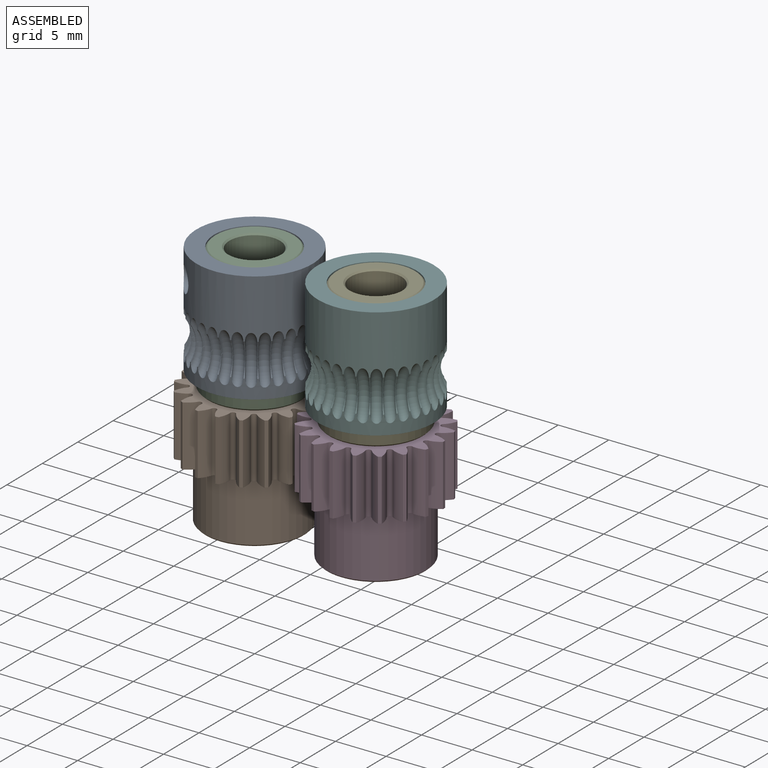
[diagram: assembled view]
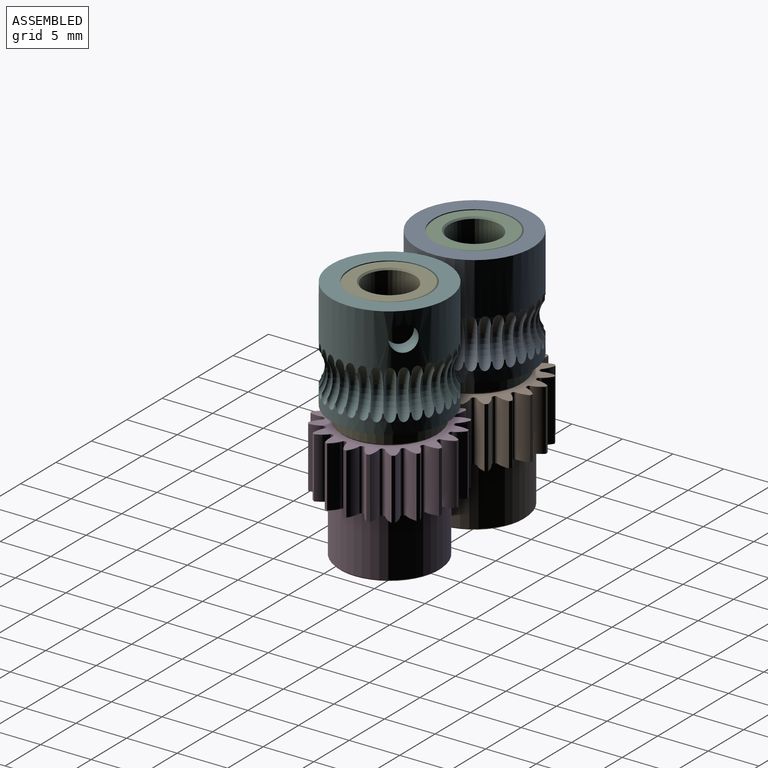
[diagram: assembled view, second angle]
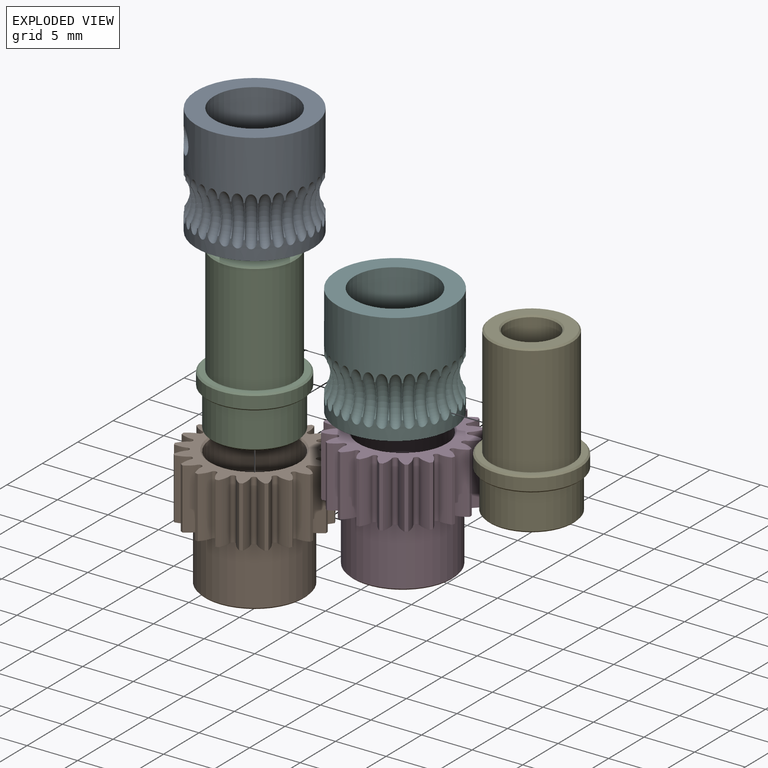
[diagram: exploded view]
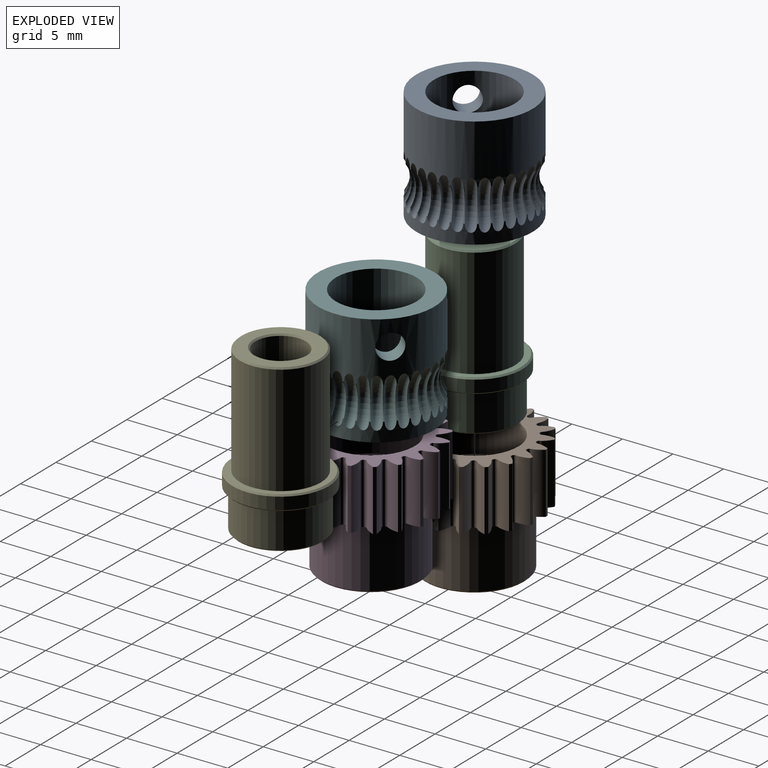
[diagram: exploded view, second angle]
ASSEMBLY  parts=6 mates=4
PART A: 70 faces, bbox 12.2x11x12.2 mm
  f0: cylinder r=5.75mm len=11.5mm, axis (0,1,0), area 186.2mm2, adj f2,f3,f4,f5,f6,f7,f8,f9
  f1: cylinder r=4mm len=11mm, axis (0,1,0), area 271.5mm2, adj f66,f67,f69
  f2: torus R=8.25mm, axis (0,1,0), area 0.4mm2, adj f0,f3,f65,f68
  f3: torus R=3mm, axis (-0.2,0,0.98), area 7.3mm2, adj f0,f2,f4,f65
  f4: torus R=8.25mm, axis (0,1,0), area 0.4mm2, adj f0,f3,f5,f65
  f5: torus R=3mm, axis (-0.38,0,0.92), area 7.3mm2, adj f0,f4,f6,f65
  f6: torus R=8.25mm, axis (0,1,0), area 0.4mm2, adj f0,f5,f7,f65
  f7: torus R=3mm, axis (-0.56,0,0.83), area 7.3mm2, adj f0,f6,f8,f65
  f8: torus R=8.25mm, axis (0,1,0), area 0.4mm2, adj f0,f7,f9,f65
  f9: torus R=3mm, axis (-0.71,0,0.71), area 7.3mm2, adj f0,f8,f10,f65
  f10: torus R=8.25mm, axis (0,1,0), area 0.4mm2, adj f0,f9,f11,f65
  f11: torus R=3mm, axis (-0.83,0,0.56), area 7.3mm2, adj f0,f10,f12,f65
  f12: torus R=8.25mm, axis (0,1,0), area 0.4mm2, adj f0,f11,f13,f65
  f13: torus R=3mm, axis (-0.92,0,0.38), area 7.3mm2, adj f0,f12,f14,f65
  f14: torus R=8.25mm, axis (0,1,0), area 0.4mm2, adj f0,f13,f15,f65
  f15: torus R=3mm, axis (-0.98,0,0.2), area 7.3mm2, adj f0,f14,f16,f65
  f16: torus R=8.25mm, axis (0,1,0), area 0.4mm2, adj f0,f15,f17,f65
  f17: torus R=3mm, axis (-1,0,0), area 7.3mm2, adj f0,f16,f18,f65
  f18: torus R=8.25mm, axis (0,1,0), area 0.4mm2, adj f0,f17,f19,f65
  f19: torus R=3mm, axis (-0.98,0,-0.2), area 7.3mm2, adj f0,f18,f20,f65
  f20: torus R=8.25mm, axis (0,1,0), area 0.4mm2, adj f0,f19,f21,f65
  f21: torus R=3mm, axis (-0.92,0,-0.38), area 7.3mm2, adj f0,f20,f22,f65
  f22: torus R=8.25mm, axis (0,1,0), area 0.4mm2, adj f0,f21,f23,f65
  f23: torus R=3mm, axis (-0.83,0,-0.56), area 7.3mm2, adj f0,f22,f24,f65
  f24: torus R=8.25mm, axis (0,1,0), area 0.4mm2, adj f0,f23,f25,f65
  f25: torus R=3mm, axis (-0.71,0,-0.71), area 7.3mm2, adj f0,f24,f26,f65
  f26: torus R=8.25mm, axis (0,1,0), area 0.4mm2, adj f0,f25,f27,f65
  f27: torus R=3mm, axis (-0.56,0,-0.83), area 7.3mm2, adj f0,f26,f28,f65
  f28: torus R=8.25mm, axis (0,1,0), area 0.4mm2, adj f0,f27,f29,f65
  f29: torus R=3mm, axis (-0.38,0,-0.92), area 7.3mm2, adj f0,f28,f30,f65
  f30: torus R=8.25mm, axis (0,1,0), area 0.4mm2, adj f0,f29,f31,f65
  f31: torus R=3mm, axis (-0.2,0,-0.98), area 7.3mm2, adj f0,f30,f32,f65
  f32: torus R=8.25mm, axis (0,1,0), area 0.4mm2, adj f0,f31,f33,f65
  f33: torus R=3mm, axis (0,0,-1), area 7.3mm2, adj f0,f32,f34,f65
  f34: torus R=8.25mm, axis (0,1,0), area 0.4mm2, adj f0,f33,f35,f65
  f35: torus R=3mm, axis (0.2,0,-0.98), area 7.3mm2, adj f0,f34,f36,f65
  f36: torus R=8.25mm, axis (0,1,0), area 0.4mm2, adj f0,f35,f37,f65
  f37: torus R=3mm, axis (0.38,0,-0.92), area 7.3mm2, adj f0,f36,f38,f65
  f38: torus R=8.25mm, axis (0,1,0), area 0.4mm2, adj f0,f37,f39,f65
  f39: torus R=3mm, axis (0.56,0,-0.83), area 7.3mm2, adj f0,f38,f40,f65
  f40: torus R=8.25mm, axis (0,1,0), area 0.4mm2, adj f0,f39,f41,f65
  f41: torus R=3mm, axis (0.71,0,-0.71), area 7.3mm2, adj f0,f40,f42,f65
  f42: torus R=8.25mm, axis (0,1,0), area 0.4mm2, adj f0,f41,f43,f65
  f43: torus R=3mm, axis (0.83,0,-0.56), area 7.3mm2, adj f0,f42,f44,f65
  f44: torus R=8.25mm, axis (0,1,0), area 0.4mm2, adj f0,f43,f45,f65
  f45: torus R=3mm, axis (0.92,0,-0.38), area 7.3mm2, adj f0,f44,f46,f65
  f46: torus R=8.25mm, axis (0,1,0), area 0.4mm2, adj f0,f45,f47,f65
  f47: torus R=3mm, axis (0.98,0,-0.2), area 7.3mm2, adj f0,f46,f48,f65
  f48: torus R=8.25mm, axis (0,1,0), area 0.4mm2, adj f0,f47,f49,f65
  f49: torus R=3mm, axis (1,0,0), area 7.3mm2, adj f0,f48,f50,f65
  f50: torus R=8.25mm, axis (0,1,0), area 0.4mm2, adj f0,f49,f51,f65
  f51: torus R=3mm, axis (0.98,0,0.2), area 7.3mm2, adj f0,f50,f52,f65
  f52: torus R=8.25mm, axis (0,1,0), area 0.4mm2, adj f0,f51,f53,f65
  f53: torus R=3mm, axis (0.92,0,0.38), area 7.3mm2, adj f0,f52,f54,f65
  f54: torus R=8.25mm, axis (0,1,0), area 0.4mm2, adj f0,f53,f55,f65
  f55: torus R=3mm, axis (0.83,0,0.56), area 7.3mm2, adj f0,f54,f56,f65
  f56: torus R=8.25mm, axis (0,1,0), area 0.4mm2, adj f0,f55,f57,f65
  f57: torus R=3mm, axis (0.71,0,0.71), area 7.3mm2, adj f0,f56,f58,f65
  f58: torus R=8.25mm, axis (0,1,0), area 0.4mm2, adj f0,f57,f59,f65
  f59: torus R=3mm, axis (0.56,0,0.83), area 7.3mm2, adj f0,f58,f60,f65
  f60: torus R=8.25mm, axis (0,1,0), area 0.4mm2, adj f0,f59,f61,f65
  f61: torus R=3mm, axis (0.38,0,0.92), area 7.3mm2, adj f0,f60,f62,f65
  f62: torus R=8.25mm, axis (0,1,0), area 0.4mm2, adj f0,f61,f63,f65
  f63: torus R=3mm, axis (0.2,0,0.98), area 7.3mm2, adj f0,f62,f64,f65
  f64: torus R=8.25mm, axis (0,1,0), area 0.4mm2, adj f0,f63,f65,f68
  f65: cylinder r=5.75mm len=11.5mm, axis (0,1,0), area 46.5mm2, adj f2,f3,f4,f5,f6,f7,f8,f9
  f66: plane 11.5x11.5mm, normal (0,1,0), area 53.6mm2, adj f0,f1
  f67: plane 11.5x11.5mm, normal (0,-1,0), area 53.6mm2, adj f1,f65
  f68: torus R=3mm, axis (0,0,1), area 7.3mm2, adj f0,f2,f64,f65
  f69: cylinder r=1.25mm len=2.5mm, axis (0,0,1), area 14mm2, adj f0,f1
PART B: 92 faces, bbox 13.2x12x13.2 mm
  f0: cylinder r=2.5mm len=7.7mm, axis (0,1,0), area 121mm2, adj f88,f91
  f1: cylinder r=6.6mm len=6mm, axis (0,1,0), area 1.8mm2, adj f20,f21,f54,f80
  f2: cylinder r=6.6mm len=6mm, axis (0,1,0), area 1.8mm2, adj f20,f21,f77,f81
  f3: cylinder r=6.6mm len=6mm, axis (0,1,0), area 1.8mm2, adj f20,f21,f74,f78
  f4: cylinder r=6.6mm len=6mm, axis (0,1,0), area 1.8mm2, adj f20,f21,f71,f75
  f5: cylinder r=6.6mm len=6mm, axis (0,1,0), area 1.8mm2, adj f20,f21,f68,f72
  f6: cylinder r=6.6mm len=6mm, axis (0,1,0), area 1.8mm2, adj f20,f21,f65,f69
  f7: cylinder r=6.6mm len=6mm, axis (0,1,0), area 1.8mm2, adj f20,f21,f62,f66
  f8: cylinder r=6.6mm len=6mm, axis (0,1,0), area 1.8mm2, adj f20,f21,f59,f63
  f9: cylinder r=6.6mm len=6mm, axis (0,1,0), area 1.8mm2, adj f20,f21,f51,f56
  f10: cylinder r=6.6mm len=6mm, axis (0,1,0), area 1.8mm2, adj f20,f21,f53,f57
  f11: cylinder r=6.6mm len=6mm, axis (0,1,0), area 1.8mm2, adj f20,f21,f48,f50
  f12: cylinder r=6.6mm len=6mm, axis (0,1,0), area 1.8mm2, adj f20,f21,f36,f47
  f13: cylinder r=6.6mm len=6mm, axis (0,1,0), area 1.8mm2, adj f20,f21,f24,f44
  f14: cylinder r=6.6mm len=6mm, axis (0,1,0), area 1.8mm2, adj f20,f21,f41,f45
  f15: cylinder r=6.6mm len=6mm, axis (0,1,0), area 1.8mm2, adj f20,f21,f38,f42
  f16: cylinder r=6.6mm len=6mm, axis (0,1,0), area 1.8mm2, adj f20,f21,f35,f39
  f17: cylinder r=6.6mm len=6mm, axis (0,1,0), area 1.8mm2, adj f20,f21,f30,f32
  f18: cylinder r=6.6mm len=6mm, axis (0,1,0), area 1.8mm2, adj f20,f21,f29,f60
  f19: cylinder r=6.6mm len=6mm, axis (0,1,0), area 1.8mm2, adj f20,f21,f26,f33
  f20: plane 13.2x13.2mm, normal (0,-1,0), area 33.1mm2, adj f1,f2,f3,f4,f5,f6,f7,f8
  f21: plane 13.2x13.2mm, normal (0,1,0), area 50.9mm2, adj f1,f2,f3,f4,f5,f6,f7,f8
  f22: cylinder r=6.6mm len=6mm, axis (0,1,0), area 1.8mm2, adj f20,f21,f23,f27
  f23: extruded ~6x1.15mm, area 7.4mm2, adj f20,f21,f22,f25
  f24: extruded ~6x0.96mm, area 7.4mm2, adj f13,f20,f21,f25
  f25: cylinder r=0.27mm len=6mm, axis (0,1,0), area 4.6mm2, adj f20,f21,f23,f24
  f26: extruded ~6x0.96mm, area 7.4mm2, adj f19,f20,f21,f28
  f27: extruded ~6x1.15mm, area 7.4mm2, adj f20,f21,f22,f28
  f28: cylinder r=0.27mm len=6mm, axis (0,1,0), area 4.6mm2, adj f20,f21,f26,f27
  f29: extruded ~6x1.19mm, area 7.4mm2, adj f18,f20,f21,f31
  f30: extruded ~6x1.19mm, area 7.4mm2, adj f17,f20,f21,f31
  f31: cylinder r=0.27mm len=6mm, axis (0,1,0), area 4.6mm2, adj f20,f21,f29,f30
  f32: extruded ~6x1.03mm, area 7.4mm2, adj f17,f20,f21,f34
  f33: extruded ~6x1.23mm, area 7.4mm2, adj f19,f20,f21,f34
  f34: cylinder r=0.27mm len=6mm, axis (0,1,0), area 4.6mm2, adj f20,f21,f32,f33
  f35: extruded ~6x0.96mm, area 7.4mm2, adj f16,f20,f21,f37
  f36: extruded ~6x1.15mm, area 7.4mm2, adj f12,f20,f21,f37
  f37: cylinder r=0.27mm len=6mm, axis (0,1,0), area 4.6mm2, adj f20,f21,f35,f36
  f38: extruded ~6x1.03mm, area 7.4mm2, adj f15,f20,f21,f40
  f39: extruded ~6x1.23mm, area 7.4mm2, adj f16,f20,f21,f40
  f40: cylinder r=0.27mm len=6mm, axis (0,1,0), area 4.6mm2, adj f20,f21,f38,f39
  f41: extruded ~6x1.19mm, area 7.4mm2, adj f14,f20,f21,f43
  f42: extruded ~6x1.19mm, area 7.4mm2, adj f15,f20,f21,f43
  f43: cylinder r=0.27mm len=6mm, axis (0,1,0), area 4.6mm2, adj f20,f21,f41,f42
  f44: extruded ~6x1.23mm, area 7.4mm2, adj f13,f20,f21,f46
  f45: extruded ~6x1.03mm, area 7.4mm2, adj f14,f20,f21,f46
  f46: cylinder r=0.27mm len=6mm, axis (0,1,0), area 4.6mm2, adj f20,f21,f44,f45
  f47: extruded ~6x1.15mm, area 7.4mm2, adj f12,f20,f21,f49
  f48: extruded ~6x0.96mm, area 7.4mm2, adj f11,f20,f21,f49
  f49: cylinder r=0.27mm len=6mm, axis (0,1,0), area 4.6mm2, adj f20,f21,f47,f48
  f50: extruded ~6x1.23mm, area 7.4mm2, adj f11,f20,f21,f52
  f51: extruded ~6x1.03mm, area 7.4mm2, adj f9,f20,f21,f52
  f52: cylinder r=0.27mm len=6mm, axis (0,1,0), area 4.6mm2, adj f20,f21,f50,f51
  f53: extruded ~6x1.03mm, area 7.4mm2, adj f10,f20,f21,f55
  f54: extruded ~6x1.23mm, area 7.4mm2, adj f1,f20,f21,f55
  f55: cylinder r=0.27mm len=6mm, axis (0,1,0), area 4.6mm2, adj f20,f21,f53,f54
  f56: extruded ~6x1.19mm, area 7.4mm2, adj f9,f20,f21,f58
  f57: extruded ~6x1.19mm, area 7.4mm2, adj f10,f20,f21,f58
  f58: cylinder r=0.27mm len=6mm, axis (0,1,0), area 4.6mm2, adj f20,f21,f56,f57
  f59: extruded ~6x1.23mm, area 7.4mm2, adj f8,f20,f21,f61
  f60: extruded ~6x1.03mm, area 7.4mm2, adj f18,f20,f21,f61
  f61: cylinder r=0.27mm len=6mm, axis (0,1,0), area 4.6mm2, adj f20,f21,f59,f60
  f62: extruded ~6x1.15mm, area 7.4mm2, adj f7,f20,f21,f64
  f63: extruded ~6x0.96mm, area 7.4mm2, adj f8,f20,f21,f64
  f64: cylinder r=0.27mm len=6mm, axis (0,1,0), area 4.6mm2, adj f20,f21,f62,f63
  f65: extruded ~6x0.96mm, area 7.4mm2, adj f6,f20,f21,f67
  f66: extruded ~6x1.15mm, area 7.4mm2, adj f7,f20,f21,f67
  f67: cylinder r=0.27mm len=6mm, axis (0,1,0), area 4.6mm2, adj f20,f21,f65,f66
  f68: extruded ~6x1.03mm, area 7.4mm2, adj f5,f20,f21,f70
  f69: extruded ~6x1.23mm, area 7.4mm2, adj f6,f20,f21,f70
  f70: cylinder r=0.27mm len=6mm, axis (0,1,0), area 4.6mm2, adj f20,f21,f68,f69
  f71: extruded ~6x1.19mm, area 7.4mm2, adj f4,f20,f21,f73
  f72: extruded ~6x1.19mm, area 7.4mm2, adj f5,f20,f21,f73
  f73: cylinder r=0.27mm len=6mm, axis (0,1,0), area 4.6mm2, adj f20,f21,f71,f72
  f74: extruded ~6x1.23mm, area 7.4mm2, adj f3,f20,f21,f76
  f75: extruded ~6x1.03mm, area 7.4mm2, adj f4,f20,f21,f76
  f76: cylinder r=0.27mm len=6mm, axis (0,1,0), area 4.6mm2, adj f20,f21,f74,f75
  f77: extruded ~6x1.15mm, area 7.4mm2, adj f2,f20,f21,f79
  f78: extruded ~6x0.96mm, area 7.4mm2, adj f3,f20,f21,f79
  f79: cylinder r=0.27mm len=6mm, axis (0,1,0), area 4.6mm2, adj f20,f21,f77,f78
  f80: extruded ~6x0.96mm, area 7.4mm2, adj f1,f20,f21,f82
  f81: extruded ~6x1.15mm, area 7.4mm2, adj f2,f20,f21,f82
  f82: cylinder r=0.27mm len=6mm, axis (0,1,0), area 4.6mm2, adj f20,f21,f80,f81
  f83: cylinder r=5mm len=10mm, axis (0,1,0), area 183.8mm2, adj f20,f87
  f84: plane 9.7x9.7mm, normal (0,-1,0), area 51.8mm2, adj f87,f88
  f85: cylinder r=4.25mm len=8.5mm, axis (0,1,0), area 98.8mm2, adj f89,f90
  f86: plane 8.2x8.2mm, normal (0,1,0), area 30.7mm2, adj f89,f91
  f87: cone r=4.85mm half-angle=45deg, axis (0,1,0), area 6.6mm2, adj f83,f84
  f88: cone r=2.5mm half-angle=45deg, axis (0,-1,0), area 3.4mm2, adj f0,f84
  f89: cone r=4.1mm half-angle=45deg, axis (0,1,0), area 5.6mm2, adj f85,f86
  f90: cone r=4.25mm half-angle=45deg, axis (0,1,0), area 5.8mm2, adj f21,f85
  f91: cone r=2.65mm half-angle=45deg, axis (0,1,0), area 3.4mm2, adj f0,f86
PART C: 14 faces, bbox 9.5x16.3x9.5 mm
  f0: cylinder r=4.75mm len=9.5mm, axis (0,-1,0), area 35.8mm2, adj f10,f11
  f1: plane 9.2x9.2mm, normal (0,1,0), area 16.2mm2, adj f6,f10
  f2: plane 9.2x9.2mm, normal (0,-1,0), area 9.7mm2, adj f3,f11
  f3: cylinder r=4.25mm len=8.5mm, axis (0,1,0), area 97.5mm2, adj f2,f13
  f4: plane 8.2x8.2mm, normal (0,-1,0), area 30.7mm2, adj f12,f13
  f5: cylinder r=2.5mm len=16mm, axis (0,1,0), area 251.3mm2, adj f8,f12
  f6: cylinder r=4mm len=10.85mm, axis (0,-1,0), area 272.7mm2, adj f1,f9
  f7: plane 7.7x7.7mm, normal (0,1,0), area 24.5mm2, adj f8,f9
  f8: cone r=2.5mm half-angle=45deg, axis (0,1,0), area 3.4mm2, adj f5,f7
  f9: cone r=3.85mm half-angle=45deg, axis (0,-1,0), area 5.2mm2, adj f6,f7
  f10: cone r=4.6mm half-angle=45deg, axis (0,-1,0), area 6.2mm2, adj f0,f1
  f11: cone r=4.75mm half-angle=45deg, axis (0,1,0), area 6.2mm2, adj f0,f2
  f12: cone r=2.5mm half-angle=45deg, axis (0,-1,0), area 3.4mm2, adj f4,f5
  f13: cone r=4.1mm half-angle=45deg, axis (0,1,0), area 5.6mm2, adj f3,f4
PART D: 92 faces, bbox 13.1x12x13.1 mm
  f0: cylinder r=2.5mm len=7.7mm, axis (0,1,0), area 121mm2, adj f88,f91
  f1: cylinder r=6.6mm len=6mm, axis (0,1,0), area 1.8mm2, adj f20,f21,f54,f80
  f2: cylinder r=6.6mm len=6mm, axis (0,1,0), area 1.8mm2, adj f20,f21,f77,f81
  f3: cylinder r=6.6mm len=6mm, axis (0,1,0), area 1.8mm2, adj f20,f21,f74,f78
  f4: cylinder r=6.6mm len=6mm, axis (0,1,0), area 1.8mm2, adj f20,f21,f71,f75
  f5: cylinder r=6.6mm len=6mm, axis (0,1,0), area 1.8mm2, adj f20,f21,f68,f72
  f6: cylinder r=6.6mm len=6mm, axis (0,1,0), area 1.8mm2, adj f20,f21,f65,f69
  f7: cylinder r=6.6mm len=6mm, axis (0,1,0), area 1.8mm2, adj f20,f21,f62,f66
  f8: cylinder r=6.6mm len=6mm, axis (0,1,0), area 1.8mm2, adj f20,f21,f59,f63
  f9: cylinder r=6.6mm len=6mm, axis (0,1,0), area 1.8mm2, adj f20,f21,f51,f56
  f10: cylinder r=6.6mm len=6mm, axis (0,1,0), area 1.8mm2, adj f20,f21,f53,f57
  f11: cylinder r=6.6mm len=6mm, axis (0,1,0), area 1.8mm2, adj f20,f21,f48,f50
  f12: cylinder r=6.6mm len=6mm, axis (0,1,0), area 1.8mm2, adj f20,f21,f36,f47
  f13: cylinder r=6.6mm len=6mm, axis (0,1,0), area 1.8mm2, adj f20,f21,f24,f44
  f14: cylinder r=6.6mm len=6mm, axis (0,1,0), area 1.8mm2, adj f20,f21,f41,f45
  f15: cylinder r=6.6mm len=6mm, axis (0,1,0), area 1.8mm2, adj f20,f21,f38,f42
  f16: cylinder r=6.6mm len=6mm, axis (0,1,0), area 1.8mm2, adj f20,f21,f35,f39
  f17: cylinder r=6.6mm len=6mm, axis (0,1,0), area 1.8mm2, adj f20,f21,f30,f32
  f18: cylinder r=6.6mm len=6mm, axis (0,1,0), area 1.8mm2, adj f20,f21,f29,f60
  f19: cylinder r=6.6mm len=6mm, axis (0,1,0), area 1.8mm2, adj f20,f21,f26,f33
  f20: plane 13.08x13.08mm, normal (0,-1,0), area 33.1mm2, adj f1,f2,f3,f4,f5,f6,f7,f8
  f21: plane 13.08x13.08mm, normal (0,1,0), area 50.9mm2, adj f1,f2,f3,f4,f5,f6,f7,f8
  f22: cylinder r=6.6mm len=6mm, axis (0,1,0), area 1.8mm2, adj f20,f21,f23,f27
  f23: extruded ~6x1.07mm, area 7.4mm2, adj f20,f21,f22,f25
  f24: extruded ~6x1.07mm, area 7.4mm2, adj f13,f20,f21,f25
  f25: cylinder r=0.27mm len=6mm, axis (0,1,0), area 4.6mm2, adj f20,f21,f23,f24
  f26: extruded ~6x0.91mm, area 7.4mm2, adj f19,f20,f21,f28
  f27: extruded ~6x1.2mm, area 7.4mm2, adj f20,f21,f22,f28
  f28: cylinder r=0.27mm len=6mm, axis (0,1,0), area 4.6mm2, adj f20,f21,f26,f27
  f29: extruded ~6x1.22mm, area 7.4mm2, adj f18,f20,f21,f31
  f30: extruded ~6x1.12mm, area 7.4mm2, adj f17,f20,f21,f31
  f31: cylinder r=0.27mm len=6mm, axis (0,1,0), area 4.6mm2, adj f20,f21,f29,f30
  f32: extruded ~6x1.12mm, area 7.4mm2, adj f17,f20,f21,f34
  f33: extruded ~6x1.22mm, area 7.4mm2, adj f19,f20,f21,f34
  f34: cylinder r=0.27mm len=6mm, axis (0,1,0), area 4.6mm2, adj f20,f21,f32,f33
  f35: extruded ~6x0.91mm, area 7.4mm2, adj f16,f20,f21,f37
  f36: extruded ~6x1.2mm, area 7.4mm2, adj f12,f20,f21,f37
  f37: cylinder r=0.27mm len=6mm, axis (0,1,0), area 4.6mm2, adj f20,f21,f35,f36
  f38: extruded ~6x1.12mm, area 7.4mm2, adj f15,f20,f21,f40
  f39: extruded ~6x1.22mm, area 7.4mm2, adj f16,f20,f21,f40
  f40: cylinder r=0.27mm len=6mm, axis (0,1,0), area 4.6mm2, adj f20,f21,f38,f39
  f41: extruded ~6x1.22mm, area 7.4mm2, adj f14,f20,f21,f43
  f42: extruded ~6x1.12mm, area 7.4mm2, adj f15,f20,f21,f43
  f43: cylinder r=0.27mm len=6mm, axis (0,1,0), area 4.6mm2, adj f20,f21,f41,f42
  f44: extruded ~6x1.2mm, area 7.4mm2, adj f13,f20,f21,f46
  f45: extruded ~6x0.91mm, area 7.4mm2, adj f14,f20,f21,f46
  f46: cylinder r=0.27mm len=6mm, axis (0,1,0), area 4.6mm2, adj f20,f21,f44,f45
  f47: extruded ~6x1.07mm, area 7.4mm2, adj f12,f20,f21,f49
  f48: extruded ~6x1.07mm, area 7.4mm2, adj f11,f20,f21,f49
  f49: cylinder r=0.27mm len=6mm, axis (0,1,0), area 4.6mm2, adj f20,f21,f47,f48
  f50: extruded ~6x1.2mm, area 7.4mm2, adj f11,f20,f21,f52
  f51: extruded ~6x0.91mm, area 7.4mm2, adj f9,f20,f21,f52
  f52: cylinder r=0.27mm len=6mm, axis (0,1,0), area 4.6mm2, adj f20,f21,f50,f51
  f53: extruded ~6x1.12mm, area 7.4mm2, adj f10,f20,f21,f55
  f54: extruded ~6x1.22mm, area 7.4mm2, adj f1,f20,f21,f55
  f55: cylinder r=0.27mm len=6mm, axis (0,1,0), area 4.6mm2, adj f20,f21,f53,f54
  f56: extruded ~6x1.22mm, area 7.4mm2, adj f9,f20,f21,f58
  f57: extruded ~6x1.12mm, area 7.4mm2, adj f10,f20,f21,f58
  f58: cylinder r=0.27mm len=6mm, axis (0,1,0), area 4.6mm2, adj f20,f21,f56,f57
  f59: extruded ~6x1.2mm, area 7.4mm2, adj f8,f20,f21,f61
  f60: extruded ~6x0.91mm, area 7.4mm2, adj f18,f20,f21,f61
  f61: cylinder r=0.27mm len=6mm, axis (0,1,0), area 4.6mm2, adj f20,f21,f59,f60
  f62: extruded ~6x1.07mm, area 7.4mm2, adj f7,f20,f21,f64
  f63: extruded ~6x1.07mm, area 7.4mm2, adj f8,f20,f21,f64
  f64: cylinder r=0.27mm len=6mm, axis (0,1,0), area 4.6mm2, adj f20,f21,f62,f63
  f65: extruded ~6x0.91mm, area 7.4mm2, adj f6,f20,f21,f67
  f66: extruded ~6x1.2mm, area 7.4mm2, adj f7,f20,f21,f67
  f67: cylinder r=0.27mm len=6mm, axis (0,1,0), area 4.6mm2, adj f20,f21,f65,f66
  f68: extruded ~6x1.12mm, area 7.4mm2, adj f5,f20,f21,f70
  f69: extruded ~6x1.22mm, area 7.4mm2, adj f6,f20,f21,f70
  f70: cylinder r=0.27mm len=6mm, axis (0,1,0), area 4.6mm2, adj f20,f21,f68,f69
  f71: extruded ~6x1.22mm, area 7.4mm2, adj f4,f20,f21,f73
  f72: extruded ~6x1.12mm, area 7.4mm2, adj f5,f20,f21,f73
  f73: cylinder r=0.27mm len=6mm, axis (0,1,0), area 4.6mm2, adj f20,f21,f71,f72
  f74: extruded ~6x1.2mm, area 7.4mm2, adj f3,f20,f21,f76
  f75: extruded ~6x0.91mm, area 7.4mm2, adj f4,f20,f21,f76
  f76: cylinder r=0.27mm len=6mm, axis (0,1,0), area 4.6mm2, adj f20,f21,f74,f75
  f77: extruded ~6x1.07mm, area 7.4mm2, adj f2,f20,f21,f79
  f78: extruded ~6x1.07mm, area 7.4mm2, adj f3,f20,f21,f79
  f79: cylinder r=0.27mm len=6mm, axis (0,1,0), area 4.6mm2, adj f20,f21,f77,f78
  f80: extruded ~6x0.91mm, area 7.4mm2, adj f1,f20,f21,f82
  f81: extruded ~6x1.2mm, area 7.4mm2, adj f2,f20,f21,f82
  f82: cylinder r=0.27mm len=6mm, axis (0,1,0), area 4.6mm2, adj f20,f21,f80,f81
  f83: cylinder r=5mm len=10mm, axis (0,1,0), area 183.8mm2, adj f20,f87
  f84: plane 9.7x9.7mm, normal (0,-1,0), area 51.8mm2, adj f87,f88
  f85: cylinder r=4.25mm len=8.5mm, axis (0,1,0), area 98.8mm2, adj f89,f90
  f86: plane 8.2x8.2mm, normal (0,1,0), area 30.7mm2, adj f89,f91
  f87: cone r=4.85mm half-angle=45deg, axis (0,1,0), area 6.6mm2, adj f83,f84
  f88: cone r=2.5mm half-angle=45deg, axis (0,-1,0), area 3.4mm2, adj f0,f84
  f89: cone r=4.1mm half-angle=45deg, axis (0,1,0), area 5.6mm2, adj f85,f86
  f90: cone r=4.25mm half-angle=45deg, axis (0,1,0), area 5.8mm2, adj f21,f85
  f91: cone r=2.65mm half-angle=45deg, axis (0,1,0), area 3.4mm2, adj f0,f86
PART E: same geometry as C
PART F: same geometry as A
PLACE A rot(axis=(0.85,-0.37,-0.37),99deg) t=(-12,0,12.5)mm
PLACE B rot(axis=(0.27,-0.68,-0.68),149.7deg) t=(-3.27,8.24,0)mm
PLACE C rot(axis=(0.85,-0.37,-0.37),99deg) t=(-12,0,0)mm
PLACE D rot(axis=(0.85,0.37,0.37),99deg) t=(0,0,0)mm
PLACE E rot(axis=(0.27,0.68,0.68),149.7deg) t=(0,0,0)mm
PLACE F rot(axis=(0.27,0.68,0.68),149.7deg) t=(0,0,12.5)mm
MATE fastened F.f0 <-> E.f6  axis (0,0,-1) through (0,0,1.5)mm
MATE fastened A.f0 <-> C.f6  axis (0,0,-1) through (-12,0,1.5)mm
MATE fastened B.f0 <-> C.f3  axis (0,0,1) through (-12,0,0)mm
MATE fastened D.f85 <-> E.f3  axis (0,0,1) through (0,0,0)mm
